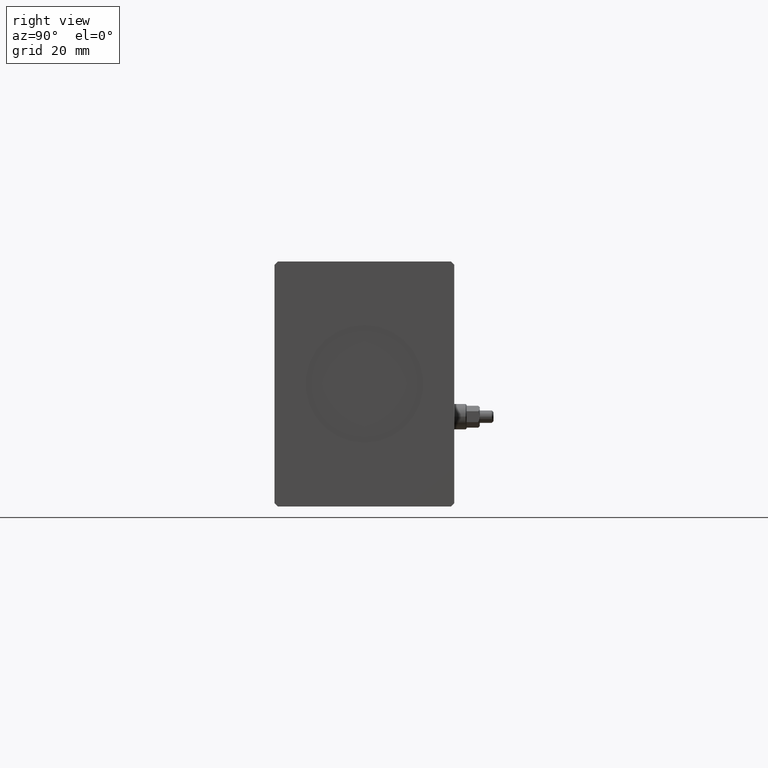
[diagram: clean part render]
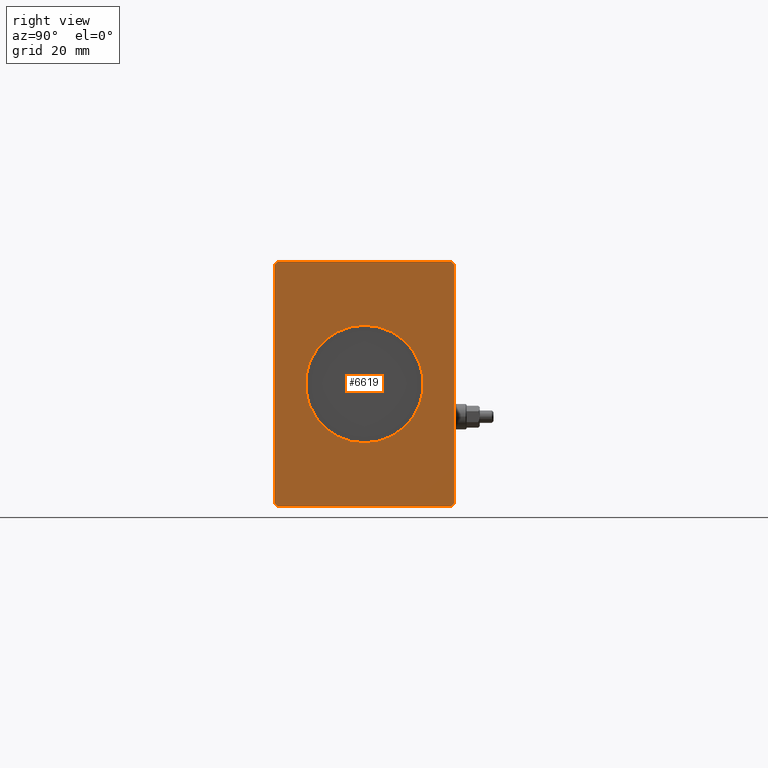
[diagram: same view with one face highlighted and labeled with its STEP entity id]
A machine part, right view. The second image highlights one B-rep face of the part: STEP entity #6619.
In plain terms, the highlighted planar face has unit normal (1, 0, 0).
Its self-contained STEP definition (entity closure, byte-faithful):
#456 = VECTOR ( 'NONE', #33517, 1000.000000000000114 ) ;
#1798 = VECTOR ( 'NONE', #17964, 1000.000000000000000 ) ;
#2210 = EDGE_CURVE ( 'NONE', #39653, #29326, #8585, .T. ) ;
#2555 = LINE ( 'NONE', #22293, #30654 ) ;
#2590 = VERTEX_POINT ( 'NONE', #2989 ) ;
#2755 = AXIS2_PLACEMENT_3D ( 'NONE', #23533, #3790, #33698 ) ;
#2989 = CARTESIAN_POINT ( 'NONE',  ( 175.0000000000000000, 2.204364238465235428E-15, 18.00000000000000000 ) ) ;
#3790 = DIRECTION ( 'NONE',  ( 1.000000000000000000, 0.000000000000000000, 0.000000000000000000 ) ) ;
#3847 = VECTOR ( 'NONE', #18917, 1000.000000000000114 ) ;
#4415 = VERTEX_POINT ( 'NONE', #24526 ) ;
#4436 = DIRECTION ( 'NONE',  ( 0.000000000000000000, -0.7071067811865474617, 0.7071067811865474617 ) ) ;
#4447 = LINE ( 'NONE', #7431, #456 ) ;
#5022 = EDGE_CURVE ( 'NONE', #26545, #11411, #23328, .T. ) ;
#5873 = ORIENTED_EDGE ( 'NONE', *, *, #21301, .T. ) ;
#5948 = AXIS2_PLACEMENT_3D ( 'NONE', #17969, #17757, #11812 ) ;
#6245 = VECTOR ( 'NONE', #22704, 1000.000000000000000 ) ;
#6302 = ORIENTED_EDGE ( 'NONE', *, *, #16435, .T. ) ;
#6603 = LINE ( 'NONE', #41612, #3847 ) ;
#6619 = ADVANCED_FACE ( 'NONE', ( #17025, #39305 ), #14046, .T. ) ;
#6809 = EDGE_CURVE ( 'NONE', #29326, #19862, #2555, .T. ) ;
#6905 = LINE ( 'NONE', #25605, #19479 ) ;
#7431 = CARTESIAN_POINT ( 'NONE',  ( 175.0000000000000000, -27.50000000000000355, -36.49999999999998579 ) ) ;
#8585 = LINE ( 'NONE', #37429, #40147 ) ;
#9522 = CARTESIAN_POINT ( 'NONE',  ( 175.0000000000000000, 0.000000000000000000, -18.00000000000000000 ) ) ;
#9757 = CARTESIAN_POINT ( 'NONE',  ( 175.0000000000000000, 26.50000000000000355, 37.50000000000000711 ) ) ;
#10864 = DIRECTION ( 'NONE',  ( 0.000000000000000000, 0.000000000000000000, -1.000000000000000000 ) ) ;
#11411 = VERTEX_POINT ( 'NONE', #33846 ) ;
#11812 = DIRECTION ( 'NONE',  ( 0.000000000000000000, 0.000000000000000000, -1.000000000000000000 ) ) ;
#12021 = CARTESIAN_POINT ( 'NONE',  ( 175.0000000000000000, 27.50000000000000711, -36.49999999999999289 ) ) ;
#13999 = CARTESIAN_POINT ( 'NONE',  ( 175.0000000000000000, 27.50000000000000355, 36.50000000000000711 ) ) ;
#14046 = PLANE ( 'NONE',  #33386 ) ;
#15636 = CIRCLE ( 'NONE', #2755, 18.00000000000000000 ) ;
#15990 = ORIENTED_EDGE ( 'NONE', *, *, #5022, .T. ) ;
#16344 = DIRECTION ( 'NONE',  ( 0.000000000000000000, 0.7071067811865474617, 0.7071067811865474617 ) ) ;
#16435 = EDGE_CURVE ( 'NONE', #19862, #20258, #31108, .T. ) ;
#17025 = FACE_BOUND ( 'NONE', #30159, .T. ) ;
#17336 = VERTEX_POINT ( 'NONE', #9522 ) ;
#17757 = DIRECTION ( 'NONE',  ( 1.000000000000000000, 0.000000000000000000, 0.000000000000000000 ) ) ;
#17964 = DIRECTION ( 'NONE',  ( 0.000000000000000000, -4.752667057470704875E-17, 1.000000000000000000 ) ) ;
#17969 = CARTESIAN_POINT ( 'NONE',  ( 175.0000000000000000, 0.000000000000000000, 0.000000000000000000 ) ) ;
#18513 = ORIENTED_EDGE ( 'NONE', *, *, #6809, .T. ) ;
#18917 = DIRECTION ( 'NONE',  ( 0.000000000000000000, -0.7071067811865474617, -0.7071067811865474617 ) ) ;
#19479 = VECTOR ( 'NONE', #32385, 1000.000000000000000 ) ;
#19511 = CIRCLE ( 'NONE', #5948, 18.00000000000000000 ) ;
#19862 = VERTEX_POINT ( 'NONE', #36905 ) ;
#19878 = EDGE_CURVE ( 'NONE', #20258, #26545, #33508, .T. ) ;
#20258 = VERTEX_POINT ( 'NONE', #20314 ) ;
#20314 = CARTESIAN_POINT ( 'NONE',  ( 175.0000000000000000, 27.50000000000000355, 36.50000000000000711 ) ) ;
#20561 = CARTESIAN_POINT ( 'NONE',  ( 175.0000000000000000, -26.50000000000000355, -37.49999999999999289 ) ) ;
#21128 = EDGE_CURVE ( 'NONE', #11411, #28269, #6603, .T. ) ;
#21186 = ORIENTED_EDGE ( 'NONE', *, *, #21128, .T. ) ;
#21301 = EDGE_CURVE ( 'NONE', #4415, #39653, #4447, .T. ) ;
#22293 = CARTESIAN_POINT ( 'NONE',  ( 175.0000000000000000, 26.50000000000000711, -37.49999999999999289 ) ) ;
#22704 = DIRECTION ( 'NONE',  ( 0.000000000000000000, -1.000000000000000000, 0.000000000000000000 ) ) ;
#23203 = EDGE_CURVE ( 'NONE', #2590, #17336, #15636, .T. ) ;
#23328 = LINE ( 'NONE', #9757, #6245 ) ;
#23533 = CARTESIAN_POINT ( 'NONE',  ( 175.0000000000000000, 0.000000000000000000, 0.000000000000000000 ) ) ;
#24526 = CARTESIAN_POINT ( 'NONE',  ( 175.0000000000000000, -27.50000000000000355, -36.49999999999998579 ) ) ;
#25605 = CARTESIAN_POINT ( 'NONE',  ( 175.0000000000000000, -27.50000000000000711, 36.50000000000000711 ) ) ;
#25638 = ORIENTED_EDGE ( 'NONE', *, *, #23203, .F. ) ;
#26545 = VERTEX_POINT ( 'NONE', #37894 ) ;
#28269 = VERTEX_POINT ( 'NONE', #35726 ) ;
#28295 = ORIENTED_EDGE ( 'NONE', *, *, #19878, .T. ) ;
#29326 = VERTEX_POINT ( 'NONE', #36389 ) ;
#29470 = EDGE_LOOP ( 'NONE', ( #28295, #15990, #21186, #33294, #5873, #36777, #18513, #6302 ) ) ;
#29971 = ORIENTED_EDGE ( 'NONE', *, *, #32576, .F. ) ;
#30159 = EDGE_LOOP ( 'NONE', ( #29971, #25638 ) ) ;
#30467 = EDGE_CURVE ( 'NONE', #28269, #4415, #6905, .T. ) ;
#30654 = VECTOR ( 'NONE', #16344, 1000.000000000000114 ) ;
#31108 = LINE ( 'NONE', #12021, #1798 ) ;
#32385 = DIRECTION ( 'NONE',  ( 0.000000000000000000, 4.752667057470705491E-17, -1.000000000000000000 ) ) ;
#32576 = EDGE_CURVE ( 'NONE', #17336, #2590, #19511, .T. ) ;
#33294 = ORIENTED_EDGE ( 'NONE', *, *, #30467, .T. ) ;
#33386 = AXIS2_PLACEMENT_3D ( 'NONE', #36114, #39933, #10864 ) ;
#33508 = LINE ( 'NONE', #13999, #39810 ) ;
#33517 = DIRECTION ( 'NONE',  ( 0.000000000000000000, 0.7071067811865451302, -0.7071067811865500152 ) ) ;
#33698 = DIRECTION ( 'NONE',  ( 0.000000000000000000, 0.000000000000000000, -1.000000000000000000 ) ) ;
#33846 = CARTESIAN_POINT ( 'NONE',  ( 175.0000000000000000, -26.50000000000000711, 37.50000000000000711 ) ) ;
#34033 = DIRECTION ( 'NONE',  ( 0.000000000000000000, 1.000000000000000000, 0.000000000000000000 ) ) ;
#35726 = CARTESIAN_POINT ( 'NONE',  ( 175.0000000000000000, -27.50000000000000711, 36.50000000000000711 ) ) ;
#36114 = CARTESIAN_POINT ( 'NONE',  ( 175.0000000000000000, 0.000000000000000000, 0.000000000000000000 ) ) ;
#36389 = CARTESIAN_POINT ( 'NONE',  ( 175.0000000000000000, 26.50000000000000711, -37.49999999999999289 ) ) ;
#36777 = ORIENTED_EDGE ( 'NONE', *, *, #2210, .T. ) ;
#36905 = CARTESIAN_POINT ( 'NONE',  ( 175.0000000000000000, 27.50000000000000711, -36.49999999999999289 ) ) ;
#37429 = CARTESIAN_POINT ( 'NONE',  ( 175.0000000000000000, -26.50000000000000355, -37.49999999999999289 ) ) ;
#37894 = CARTESIAN_POINT ( 'NONE',  ( 175.0000000000000000, 26.50000000000000355, 37.50000000000000711 ) ) ;
#39305 = FACE_OUTER_BOUND ( 'NONE', #29470, .T. ) ;
#39653 = VERTEX_POINT ( 'NONE', #20561 ) ;
#39810 = VECTOR ( 'NONE', #4436, 1000.000000000000114 ) ;
#39933 = DIRECTION ( 'NONE',  ( 1.000000000000000000, 0.000000000000000000, 0.000000000000000000 ) ) ;
#40147 = VECTOR ( 'NONE', #34033, 1000.000000000000000 ) ;
#41612 = CARTESIAN_POINT ( 'NONE',  ( 175.0000000000000000, -26.50000000000000711, 37.50000000000000711 ) ) ;